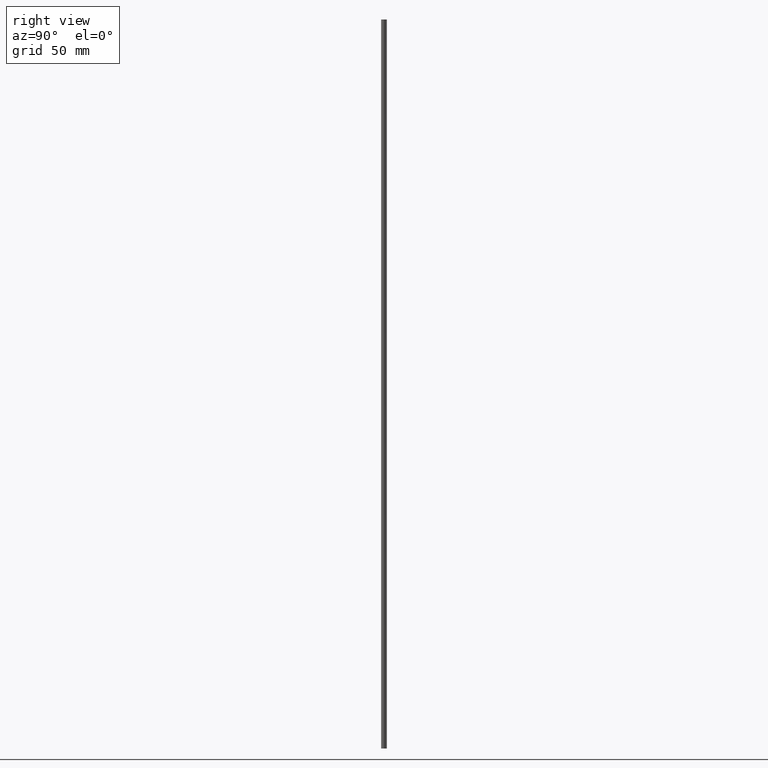
[diagram: clean part render]
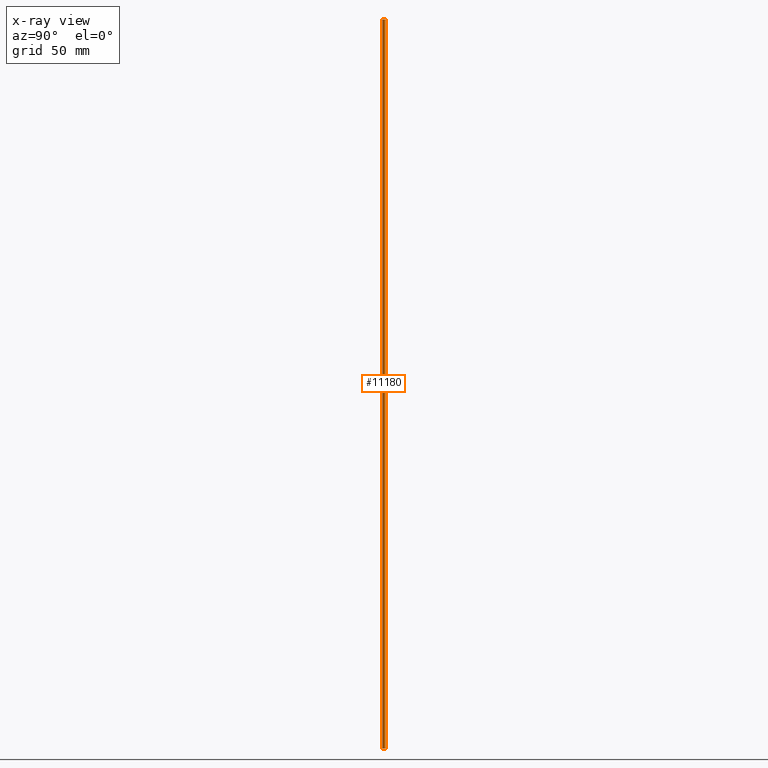
[diagram: x-ray — body ghosted, one internal face saturated and labeled with its STEP entity id]
A machine part, right view, then the same camera in x-ray: the body is ghosted and one INTERNAL B-rep face — a face not visible from any outside direction — is saturated and labeled: STEP entity #11180.
In plain terms, the highlighted face is a freeform B-spline surface patch.
Its self-contained STEP definition (entity closure, byte-faithful):
#11078=CARTESIAN_POINT('',(0.118034234656758,-0.993009526363666,512.500000000000230));
#11079=CARTESIAN_POINT('',(0.089614728637978,-0.996387615448606,512.500000000000110));
#11080=CARTESIAN_POINT('',(0.061048539534857,-0.998134798421867,512.500000000000110));
#11081=CARTESIAN_POINT('',(-0.937086258887010,-1.059183337956724,512.500000000000110));
#11082=CARTESIAN_POINT('',(-0.998134798421867,-0.061048539534857,512.500000000000110));
#11083=CARTESIAN_POINT('',(-1.059183337956724,0.937086258887010,512.500000000000110));
#11084=CARTESIAN_POINT('',(-0.061048539534857,0.998134798421867,512.500000000000110));
#11085=CARTESIAN_POINT('',(0.118034234656758,-0.993009526363666,-12.812499999999998));
#11086=CARTESIAN_POINT('',(0.089614728637978,-0.996387615448606,-12.812499999999995));
#11087=CARTESIAN_POINT('',(0.061048539534857,-0.998134798421867,-12.812500000000000));
#11088=CARTESIAN_POINT('',(-0.937086258887010,-1.059183337956724,-12.812500000000000));
#11089=CARTESIAN_POINT('',(-0.998134798421867,-0.061048539534857,-12.812500000000000));
#11090=CARTESIAN_POINT('',(-1.059183337956724,0.937086258887010,-12.812500000000000));
#11091=CARTESIAN_POINT('',(-0.061048539534857,0.998134798421867,-12.812500000000000));
#11099=(BOUNDED_SURFACE()B_SPLINE_SURFACE(2,1,((#11078,#11085),(#11079,#11086),(#11080,#11087),(#11081,#11088),(#11082,#11089),(#11083,#11090),(#11084,#11091)),.UNSPECIFIED.,.F.,.F.,.U.)B_SPLINE_SURFACE_WITH_KNOTS((3,2,2,3),(2,2),(3.078760800517997,3.141592653589793,4.712388980384690,6.283185307179586),(0.0,525.312500000000230),.UNSPECIFIED.)GEOMETRIC_REPRESENTATION_ITEM()RATIONAL_B_SPLINE_SURFACE(((0.977505800795127,0.977505800795127),(0.988284271247462,0.988284271247462),(1.0,1.0),(0.707106781186548,0.707106781186548),(1.0,1.0),(0.707106781186548,0.707106781186548),(1.0,1.0)))REPRESENTATION_ITEM('')SURFACE());
#11100=CARTESIAN_POINT('',(0.118034256607767,-0.993009523754456,-2.180681E-014));
#11101=VERTEX_POINT('',#11100);
#11102=CARTESIAN_POINT('',(-1.0,0.0,0.0));
#11103=VERTEX_POINT('',#11102);
#11104=CARTESIAN_POINT('',(0.118034256607767,-0.993009523754456,-2.180681E-014));
#11105=CARTESIAN_POINT('',(0.059224141834982,-1.0,0.0));
#11106=CARTESIAN_POINT('',(0.0,-1.0,0.0));
#11107=CARTESIAN_POINT('',(-1.0,-1.0,0.0));
#11108=CARTESIAN_POINT('',(-1.0,0.0,0.0));
#11116=(BOUNDED_CURVE()B_SPLINE_CURVE(2,(#11104,#11105,#11106,#11107,#11108),.UNSPECIFIED.,.F.,.U.)B_SPLINE_CURVE_WITH_KNOTS((3,2,3),(0.229562466043829,0.250000000000000,0.500000000000000),.UNSPECIFIED.)CURVE()GEOMETRIC_REPRESENTATION_ITEM()RATIONAL_B_SPLINE_CURVE((0.956026739542823,0.976055939579871,1.0,0.707106781186548,1.0))REPRESENTATION_ITEM(''));
#11117=EDGE_CURVE('',#11101,#11103,#11116,.T.);
#11118=ORIENTED_EDGE('',*,*,#11117,.F.);
#11119=CARTESIAN_POINT('',(0.118034256607851,-0.993009523754446,500.0));
#11120=VERTEX_POINT('',#11119);
#11121=CARTESIAN_POINT('',(0.118034256607851,-0.993009523754446,500.0));
#11122=CARTESIAN_POINT('',(0.118034256607767,-0.993009523754456,-2.180681E-014));
#11123=QUASI_UNIFORM_CURVE('',1,(#11121,#11122),.UNSPECIFIED.,.F.,.U.);
#11124=EDGE_CURVE('',#11120,#11101,#11123,.T.);
#11125=ORIENTED_EDGE('',*,*,#11124,.F.);
#11126=CARTESIAN_POINT('',(-1.0,0.0,500.0));
#11127=VERTEX_POINT('',#11126);
#11128=CARTESIAN_POINT('',(0.118034256607851,-0.993009523754446,500.0));
#11129=CARTESIAN_POINT('',(0.059224141835067,-1.0,500.0));
#11130=CARTESIAN_POINT('',(0.0,-1.0,500.0));
#11131=CARTESIAN_POINT('',(-1.0,-1.0,500.0));
#11132=CARTESIAN_POINT('',(-1.0,0.0,500.0));
#11140=(BOUNDED_CURVE()B_SPLINE_CURVE(2,(#11128,#11129,#11130,#11131,#11132),.UNSPECIFIED.,.F.,.U.)B_SPLINE_CURVE_WITH_KNOTS((3,2,3),(0.229562466043801,0.250000000000000,0.500000000000000),.UNSPECIFIED.)CURVE()GEOMETRIC_REPRESENTATION_ITEM()RATIONAL_B_SPLINE_CURVE((0.956026739542767,0.976055939579838,1.0,0.707106781186548,1.0))REPRESENTATION_ITEM(''));
#11141=EDGE_CURVE('',#11120,#11127,#11140,.T.);
#11142=ORIENTED_EDGE('',*,*,#11141,.T.);
#11143=CARTESIAN_POINT('',(-0.061048553103046,0.998134797592001,500.0));
#11144=VERTEX_POINT('',#11143);
#11145=CARTESIAN_POINT('',(-1.0,0.0,500.0));
#11146=CARTESIAN_POINT('',(-1.0,0.940706041282847,500.000000000000060));
#11147=CARTESIAN_POINT('',(-0.061048553103046,0.998134797592001,500.0));
#11155=(BOUNDED_CURVE()B_SPLINE_CURVE(2,(#11145,#11146,#11147),.UNSPECIFIED.,.F.,.U.)B_SPLINE_CURVE_WITH_KNOTS((3,3),(0.500000000000000,0.739332957550924),.UNSPECIFIED.)CURVE()GEOMETRIC_REPRESENTATION_ITEM()RATIONAL_B_SPLINE_CURVE((1.0,0.719603998779066,0.976072031619401))REPRESENTATION_ITEM(''));
#11156=EDGE_CURVE('',#11127,#11144,#11155,.T.);
#11157=ORIENTED_EDGE('',*,*,#11156,.T.);
#11158=CARTESIAN_POINT('',(-0.061048553103003,0.998134797592003,-2.220446E-014));
#11159=VERTEX_POINT('',#11158);
#11160=CARTESIAN_POINT('',(-0.061048553103046,0.998134797592001,500.0));
#11161=CARTESIAN_POINT('',(-0.061048553103003,0.998134797592003,-2.220446E-014));
#11162=QUASI_UNIFORM_CURVE('',1,(#11160,#11161),.UNSPECIFIED.,.F.,.U.);
#11163=EDGE_CURVE('',#11144,#11159,#11162,.T.);
#11164=ORIENTED_EDGE('',*,*,#11163,.T.);
#11165=CARTESIAN_POINT('',(-1.0,0.0,0.0));
#11166=CARTESIAN_POINT('',(-1.0,0.940706041282920,0.0));
#11167=CARTESIAN_POINT('',(-0.061048553103003,0.998134797592003,-2.220446E-014));
#11175=(BOUNDED_CURVE()B_SPLINE_CURVE(2,(#11165,#11166,#11167),.UNSPECIFIED.,.F.,.U.)B_SPLINE_CURVE_WITH_KNOTS((3,3),(0.500000000000000,0.739332957550937),.UNSPECIFIED.)CURVE()GEOMETRIC_REPRESENTATION_ITEM()RATIONAL_B_SPLINE_CURVE((1.0,0.719603998779050,0.976072031619430))REPRESENTATION_ITEM(''));
#11176=EDGE_CURVE('',#11103,#11159,#11175,.T.);
#11177=ORIENTED_EDGE('',*,*,#11176,.F.);
#11178=EDGE_LOOP('',(#11118,#11125,#11142,#11157,#11164,#11177));
#11179=FACE_OUTER_BOUND('',#11178,.T.);
#11180=ADVANCED_FACE('',(#11179),#11099,.T.);